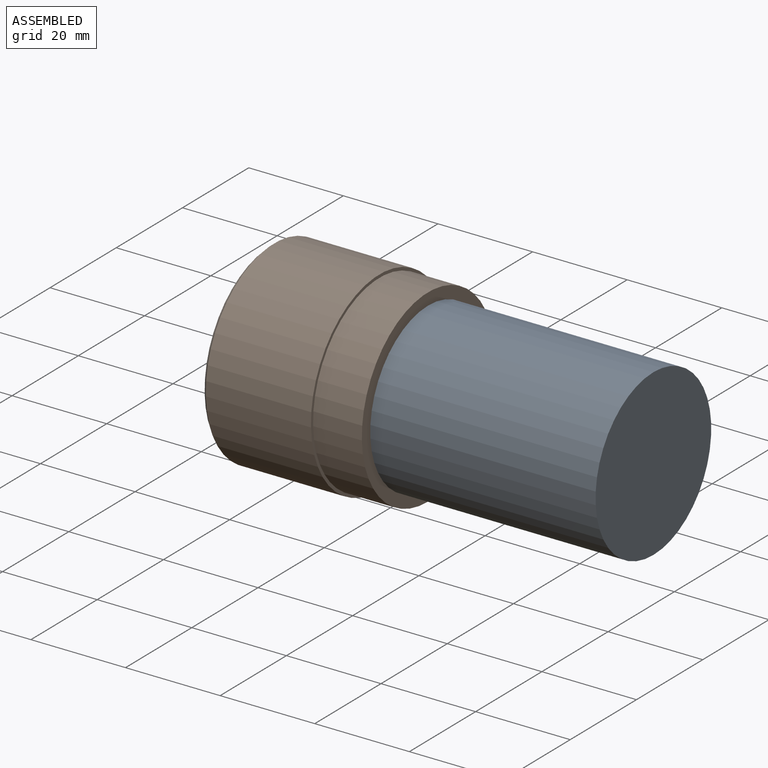
[diagram: assembled view]
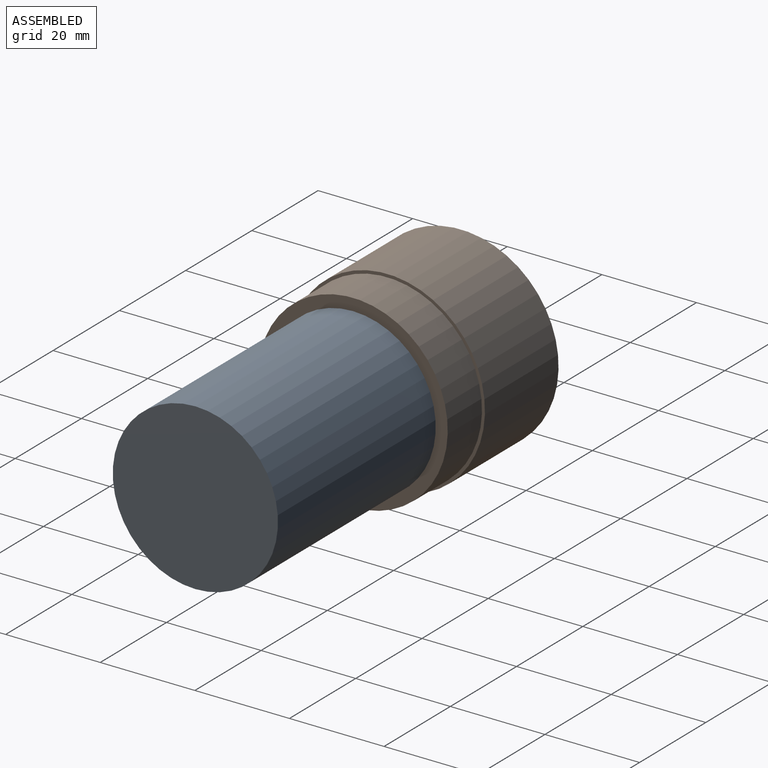
[diagram: assembled view, second angle]
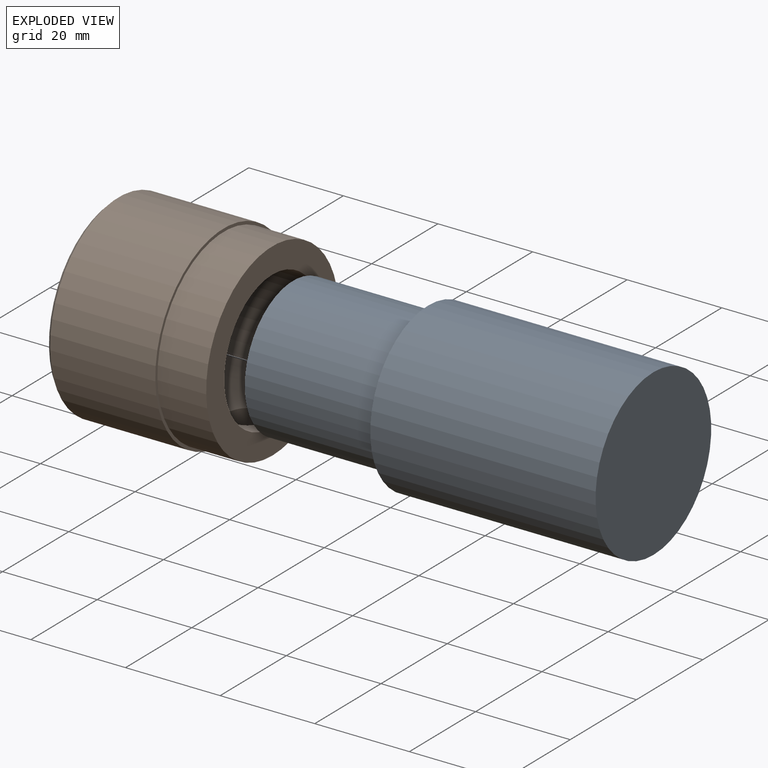
[diagram: exploded view]
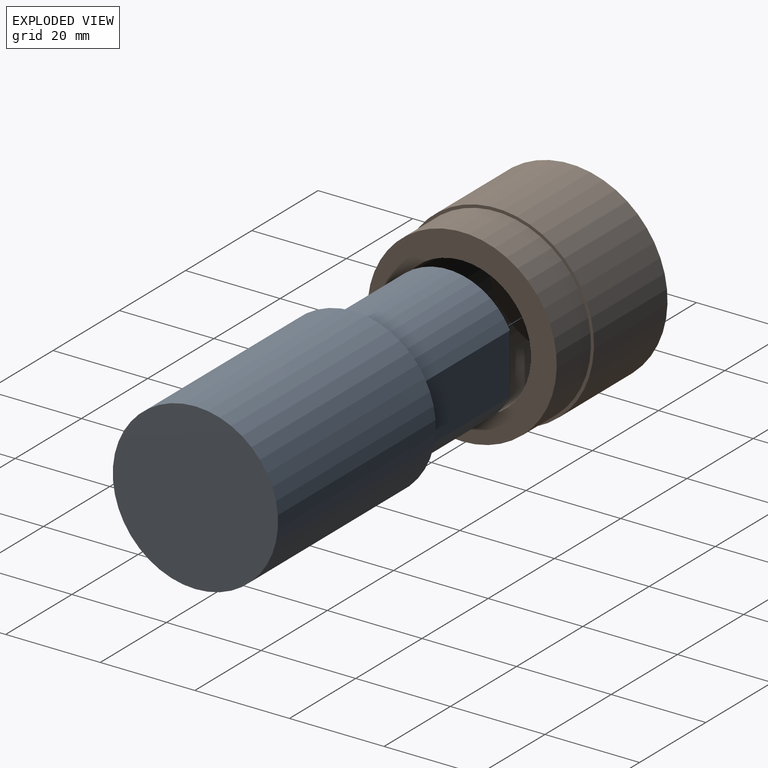
[diagram: exploded view, second angle]
ASSEMBLY  parts=2 mates=2
PART A: 6 faces, bbox 76.2x34.9x34.9 mm
  f0: plane 29.08x27.62mm, normal (1,0,0), area 651.8mm2, adj f1,f5
  f1: cylinder r=14.54mm len=29.08mm, axis (1,0,0), area 2235.3mm2, adj f0,f2,f5
  f2: plane 34.93x34.93mm, normal (1,0,0), area 306.2mm2, adj f1,f3,f5
  f3: cylinder r=17.46mm len=47.63mm, axis (1,0,0), area 5225.4mm2, adj f2,f4
  f4: plane 34.93x34.93mm, normal (-1,0,0), area 958mm2, adj f3
  f5: plane 28.58x12.7mm, normal (0,1,0), area 362.9mm2, adj f0,f1,f2
PART B: 12 faces, bbox 33.3x41.3x41.3 mm
  f0: cylinder r=20mm len=40.01mm, axis (1,0,0), area 1259.2mm2, adj f2,f3,f9
  f1: cylinder r=14.57mm len=29.13mm, axis (1,0,0), area 2577.7mm2, adj f2,f8,f9
  f2: plane 40.01x40.01mm, normal (1,0,0), area 590.3mm2, adj f0,f1
  f3: plane 41.28x41.28mm, normal (1,0,0), area 81.1mm2, adj f0,f4
  f4: cylinder r=20.64mm len=41.28mm, axis (1,0,0), area 2881.9mm2, adj f3,f11
  f5: plane 39.69x39.69mm, normal (-1,0,0), area 190mm2, adj f10,f11
  f6: cylinder r=17.46mm len=34.93mm, axis (1,0,0), area 174.2mm2, adj f7,f10
  f7: plane 34.93x34.93mm, normal (-1,0,0), area 958mm2, adj f6
  f8: plane 29.13x29.13mm, normal (1,0,0), area 666.6mm2, adj f1
  f9: cylinder r=3.45mm len=6.91mm, axis (0,0,1), area 119.2mm2, adj f0,f1
  f10: cone r=18.26mm half-angle=45deg, axis (-1,0,0), area 126mm2, adj f5,f6
  f11: cone r=20.64mm half-angle=45deg, axis (1,0,0), area 142.8mm2, adj f4,f5
PLACE A rot(axis=(0,1,0),180deg) t=(-62.04,2.02,35.23)mm
PLACE B t=(-33.47,2.02,35.23)mm
MATE cylindrical B.f0 <-> A.f1  axis (1,0,0) through (-47.76,2.02,35.23)mm
MATE planar A.f0 <-> B.f0  axis (-1,0,0) through (-62.04,1.76,35.23)mm
